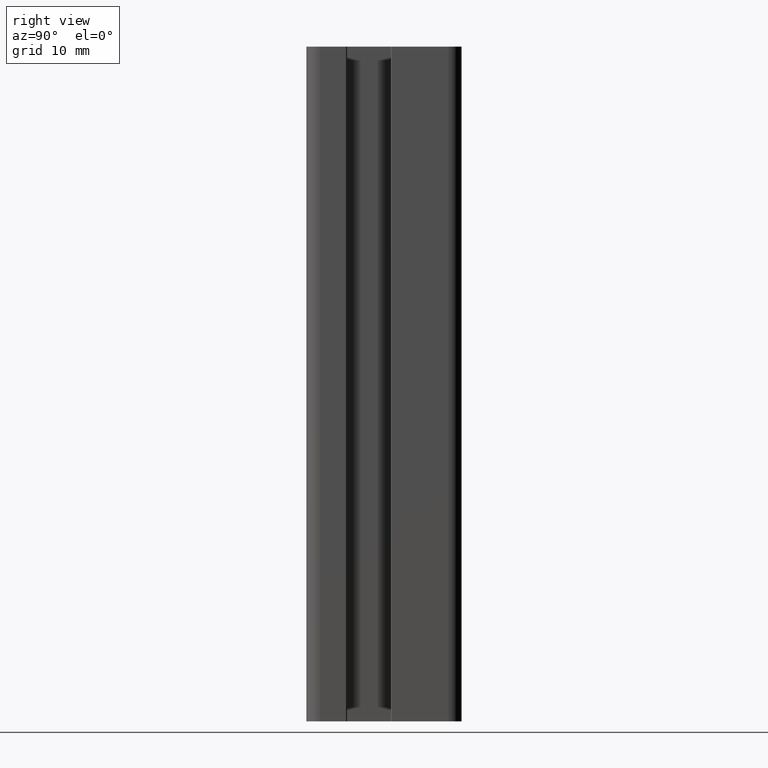
[diagram: clean part render]
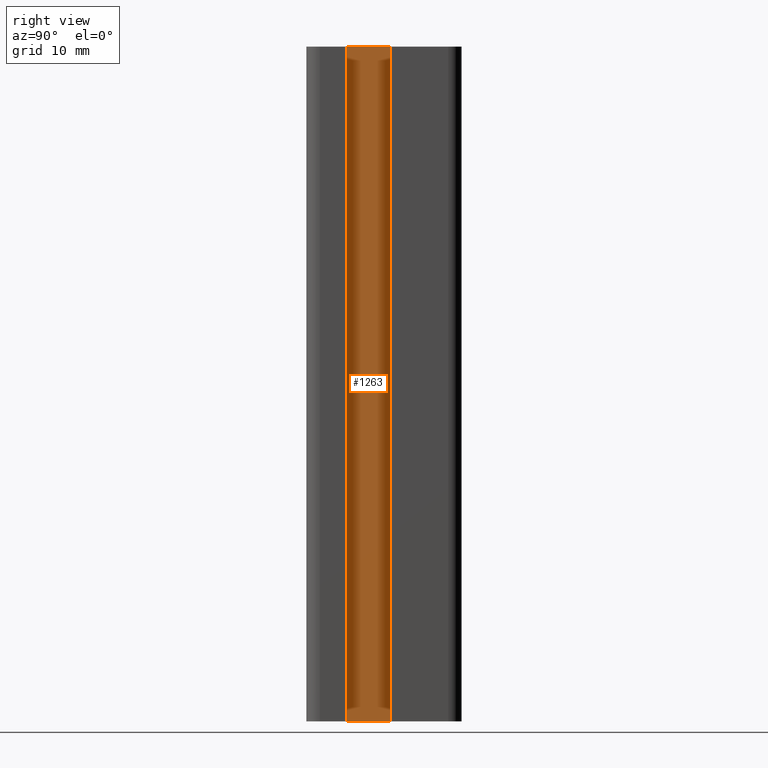
[diagram: same view with one face highlighted and labeled with its STEP entity id]
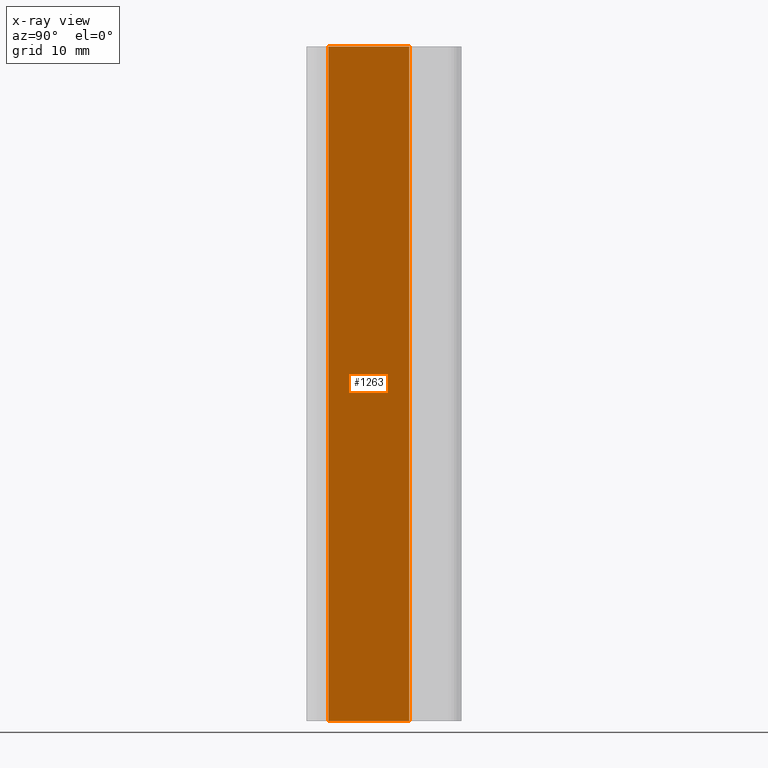
[diagram: x-ray of the same camera — body ghosted, the highlighted face saturated]
A machine part, right view. The second image highlights one B-rep face of the part: STEP entity #1263.
The next image is the same camera in x-ray: the body ghosted, the highlighted face saturated — about 0% of this face is hidden behind the body in this view.
In plain terms, the highlighted planar face has unit normal (1, 0, 0).
Its self-contained STEP definition (entity closure, byte-faithful):
#45=PLANE('',#1361);
#103=FACE_OUTER_BOUND('',#167,.T.);
#167=EDGE_LOOP('',(#1007,#1008,#1009,#1010));
#291=LINE('',#2030,#433);
#292=LINE('',#2033,#434);
#293=LINE('',#2035,#435);
#294=LINE('',#2036,#436);
#433=VECTOR('',#1655,100.);
#434=VECTOR('',#1658,12.);
#435=VECTOR('',#1659,12.);
#436=VECTOR('',#1660,100.);
#605=VERTEX_POINT('',#2026);
#606=VERTEX_POINT('',#2028);
#607=VERTEX_POINT('',#2032);
#608=VERTEX_POINT('',#2034);
#775=EDGE_CURVE('',#605,#606,#291,.T.);
#776=EDGE_CURVE('',#607,#605,#292,.T.);
#777=EDGE_CURVE('',#608,#606,#293,.T.);
#778=EDGE_CURVE('',#607,#608,#294,.T.);
#1007=ORIENTED_EDGE('',*,*,#776,.T.);
#1008=ORIENTED_EDGE('',*,*,#775,.T.);
#1009=ORIENTED_EDGE('',*,*,#777,.F.);
#1010=ORIENTED_EDGE('',*,*,#778,.F.);
#1263=ADVANCED_FACE('',(#103),#45,.T.);
#1361=AXIS2_PLACEMENT_3D('',#2031,#1656,#1657);
#1655=DIRECTION('',(0.,0.,1.));
#1656=DIRECTION('center_axis',(1.,0.,0.));
#1657=DIRECTION('ref_axis',(0.,1.,0.));
#1658=DIRECTION('',(0.,1.,0.));
#1659=DIRECTION('',(0.,1.,0.));
#1660=DIRECTION('',(0.,0.,1.));
#2026=CARTESIAN_POINT('',(8.79999999999999,3.75000000000004,0.));
#2028=CARTESIAN_POINT('',(8.79999999999999,3.75000000000004,100.));
#2030=CARTESIAN_POINT('',(8.79999999999999,3.75000000000004,0.));
#2031=CARTESIAN_POINT('Origin',(8.79999999999999,-8.24999999999999,0.));
#2032=CARTESIAN_POINT('',(8.79999999999999,-8.24999999999999,0.));
#2033=CARTESIAN_POINT('',(8.79999999999999,-8.24999999999999,0.));
#2034=CARTESIAN_POINT('',(8.79999999999999,-8.24999999999999,100.));
#2035=CARTESIAN_POINT('',(8.79999999999999,-8.24999999999999,100.));
#2036=CARTESIAN_POINT('',(8.79999999999999,-8.24999999999999,0.));